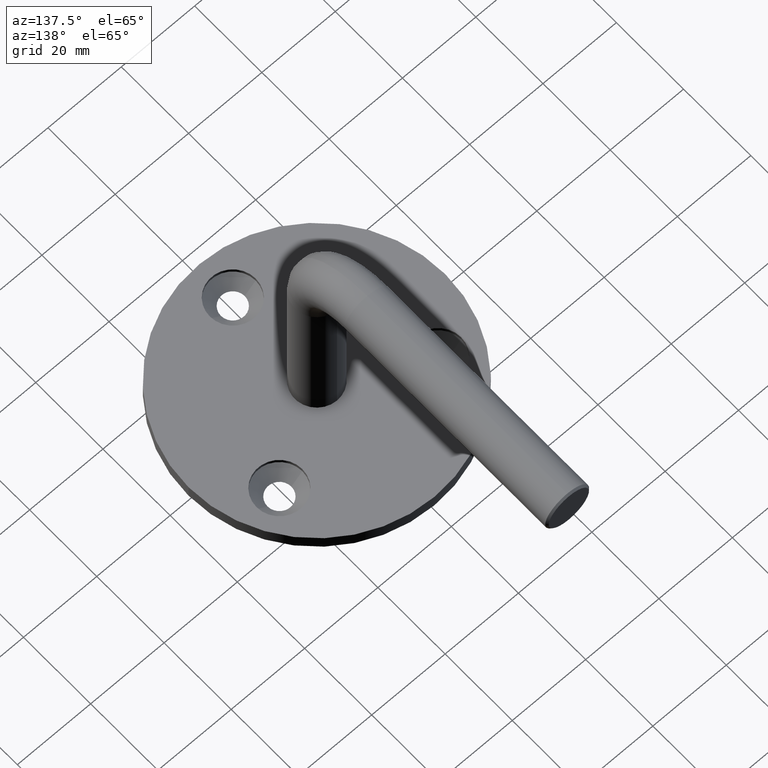
[diagram: clean part render]
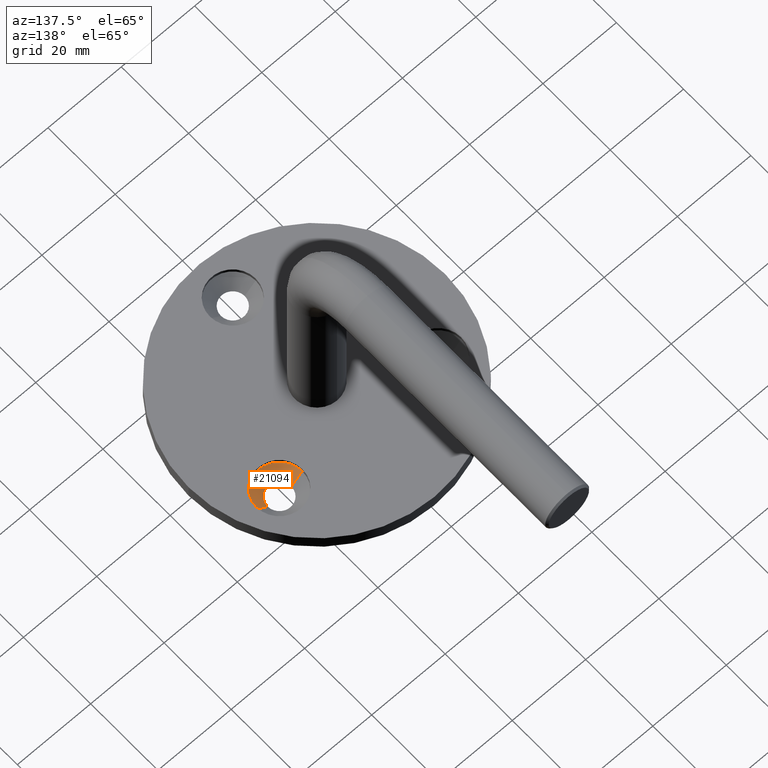
[diagram: same view with one face highlighted and labeled with its STEP entity id]
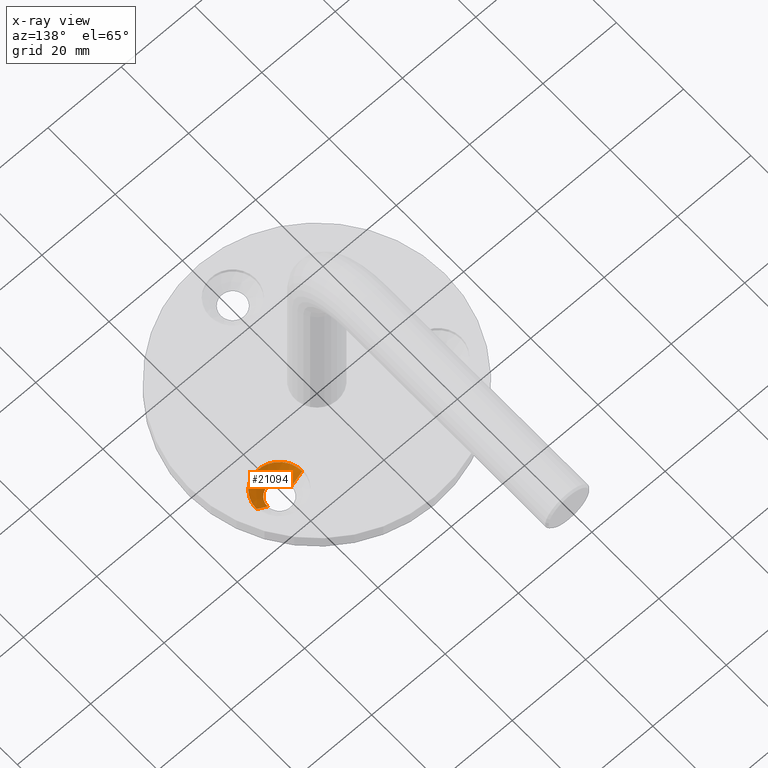
[diagram: x-ray of the same camera — body ghosted, the highlighted face saturated]
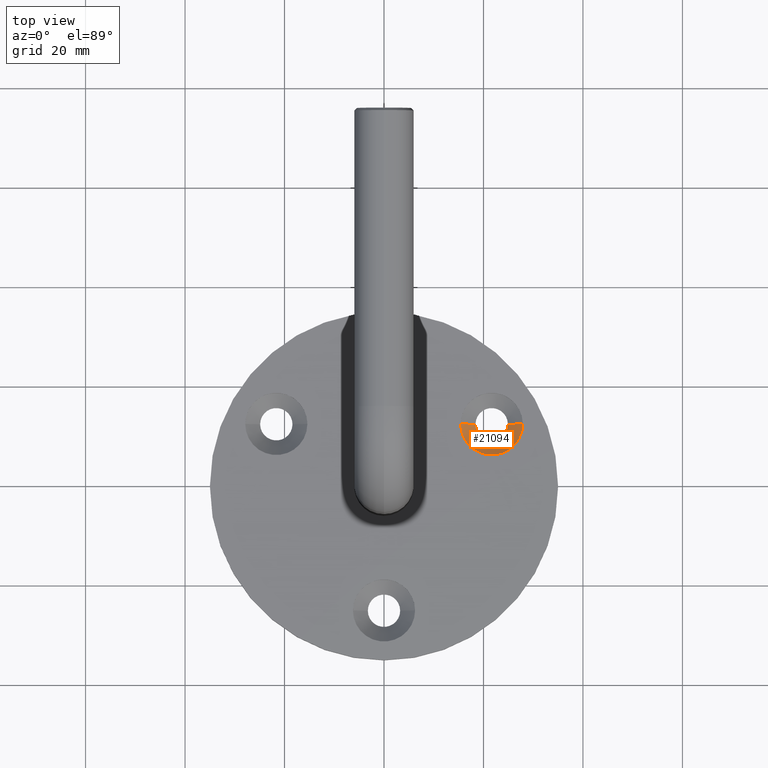
[diagram: same view with one face highlighted and labeled with its STEP entity id]
A machine part, auxiliary view. The second image highlights one B-rep face of the part: STEP entity #21094.
The next image is the same camera in x-ray: the body ghosted, the highlighted face saturated — about 0% of this face is hidden behind the body in this view.
A second angle (top view) of the same face is appended — the face is thin or edge-on in the first view.
In plain terms, the highlighted conical surface has half-angle 45 deg.
Its self-contained STEP definition (entity closure, byte-faithful):
#465 = EDGE_LOOP ( 'NONE', ( #1068, #21680, #18831, #8752 ) ) ;
#1068 = ORIENTED_EDGE ( 'NONE', *, *, #9688, .F. ) ;
#1508 = CARTESIAN_POINT ( 'NONE',  ( 15.40063509461108637, 12.49999999999980282, 3.000000000000000000 ) ) ;
#2603 = CARTESIAN_POINT ( 'NONE',  ( 24.90063509461108282, 12.49999999999980282, 0.000000000000000000 ) ) ;
#2713 = VERTEX_POINT ( 'NONE', #10591 ) ;
#2763 = DIRECTION ( 'NONE',  ( -0.000000000000000000, -0.000000000000000000, 1.000000000000000000 ) ) ;
#2877 = VECTOR ( 'NONE', #3247, 1000.000000000000000 ) ;
#2916 = DIRECTION ( 'NONE',  ( 1.000000000000000000, 0.000000000000000000, 0.000000000000000000 ) ) ;
#3247 = DIRECTION ( 'NONE',  ( -0.7071067811865474617, 8.659560562354931626E-17, 0.7071067811865476838 ) ) ;
#3383 = DIRECTION ( 'NONE',  ( 1.000000000000000000, 0.000000000000000000, 0.000000000000000000 ) ) ;
#3642 = CARTESIAN_POINT ( 'NONE',  ( 27.90063509461108282, 12.49999999999980282, 3.000000000000000000 ) ) ;
#3731 = CONICAL_SURFACE ( 'NONE', #8234, 6.249999999999998224, 0.7853981633974481680 ) ;
#5162 = VERTEX_POINT ( 'NONE', #10298 ) ;
#5363 = CIRCLE ( 'NONE', #9387, 6.249999999999998224 ) ;
#7097 = CARTESIAN_POINT ( 'NONE',  ( 21.65063509461108282, 12.49999999999980282, 3.000000000000000000 ) ) ;
#7780 = VECTOR ( 'NONE', #7988, 1000.000000000000000 ) ;
#7988 = DIRECTION ( 'NONE',  ( 0.7071067811865474617, 0.000000000000000000, 0.7071067811865476838 ) ) ;
#8179 = VERTEX_POINT ( 'NONE', #3642 ) ;
#8234 = AXIS2_PLACEMENT_3D ( 'NONE', #7097, #12050, #3383 ) ;
#8752 = ORIENTED_EDGE ( 'NONE', *, *, #15167, .F. ) ;
#9387 = AXIS2_PLACEMENT_3D ( 'NONE', #11262, #18336, #19858 ) ;
#9688 = EDGE_CURVE ( 'NONE', #2713, #21439, #9771, .T. ) ;
#9771 = CIRCLE ( 'NONE', #12052, 3.249999999999999556 ) ;
#10298 = CARTESIAN_POINT ( 'NONE',  ( 15.40063509461108637, 12.49999999999980282, 3.000000000000000000 ) ) ;
#10591 = CARTESIAN_POINT ( 'NONE',  ( 18.40063509461108637, 12.49999999999980282, 0.000000000000000000 ) ) ;
#11262 = CARTESIAN_POINT ( 'NONE',  ( 21.65063509461108282, 12.49999999999980282, 3.000000000000000000 ) ) ;
#12050 = DIRECTION ( 'NONE',  ( -0.000000000000000000, -0.000000000000000000, 1.000000000000000000 ) ) ;
#12052 = AXIS2_PLACEMENT_3D ( 'NONE', #18490, #2763, #2916 ) ;
#12982 = FACE_OUTER_BOUND ( 'NONE', #465, .T. ) ;
#15140 = LINE ( 'NONE', #18469, #7780 ) ;
#15167 = EDGE_CURVE ( 'NONE', #21439, #8179, #15140, .T. ) ;
#15742 = EDGE_CURVE ( 'NONE', #2713, #5162, #17852, .T. ) ;
#17852 = LINE ( 'NONE', #1508, #2877 ) ;
#18336 = DIRECTION ( 'NONE',  ( -0.000000000000000000, -0.000000000000000000, 1.000000000000000000 ) ) ;
#18469 = CARTESIAN_POINT ( 'NONE',  ( 27.90063509461108282, 12.49999999999980282, 3.000000000000000000 ) ) ;
#18490 = CARTESIAN_POINT ( 'NONE',  ( 21.65063509461108282, 12.49999999999980282, 0.000000000000000000 ) ) ;
#18831 = ORIENTED_EDGE ( 'NONE', *, *, #21426, .T. ) ;
#19858 = DIRECTION ( 'NONE',  ( 1.000000000000000000, 0.000000000000000000, 0.000000000000000000 ) ) ;
#21094 = ADVANCED_FACE ( 'NONE', ( #12982 ), #3731, .F. ) ;
#21426 = EDGE_CURVE ( 'NONE', #5162, #8179, #5363, .T. ) ;
#21439 = VERTEX_POINT ( 'NONE', #2603 ) ;
#21680 = ORIENTED_EDGE ( 'NONE', *, *, #15742, .T. ) ;